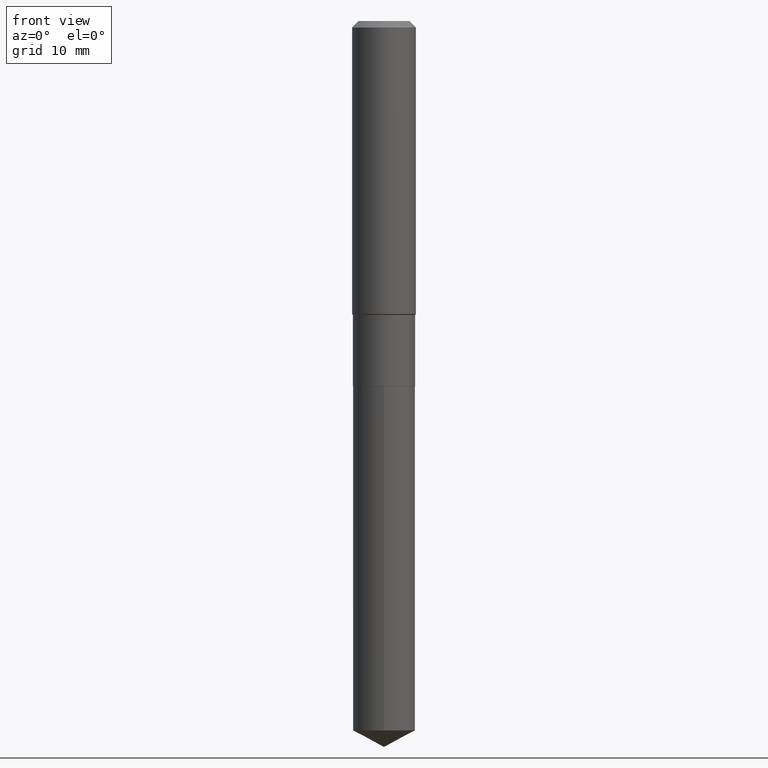
[diagram: clean part render]
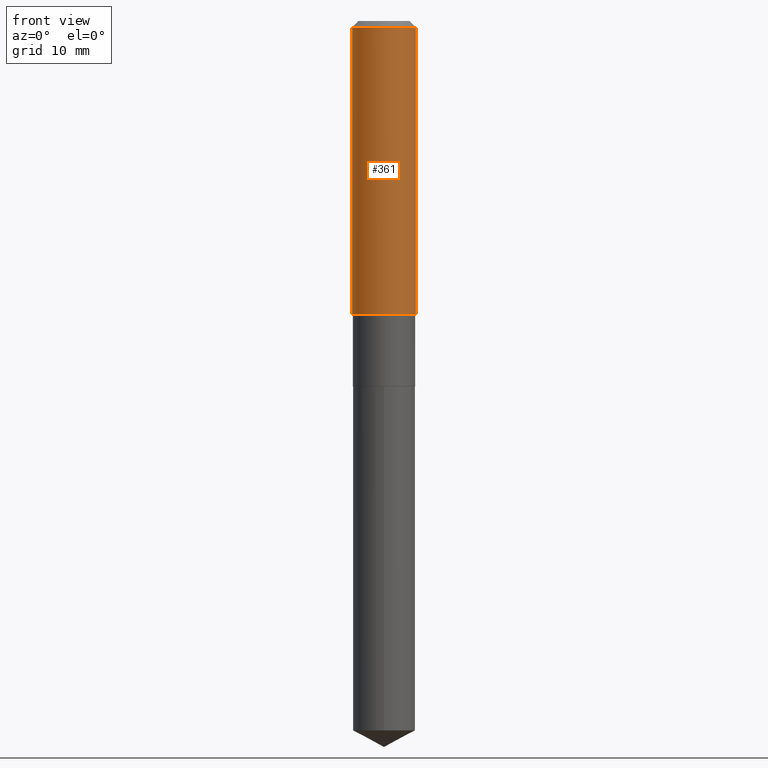
[diagram: same view with one face highlighted and labeled with its STEP entity id]
A machine part, front view. The second image highlights one B-rep face of the part: STEP entity #361.
In plain terms, the highlighted cylindrical surface (edge-blend (fillet) strip) has radius 4.0005 mm, axis along (-0, 0, 1).
Its self-contained STEP definition (entity closure, byte-faithful):
#16 = VERTEX_POINT ( 'NONE', #144 ) ;
#26 = CARTESIAN_POINT ( 'NONE',  ( -0.1575000000000000844, 1.119104808822158392E-15, -7.747322767151481189E-30 ) ) ;
#45 = EDGE_LOOP ( 'NONE', ( #453, #390, #393, #409 ) ) ;
#56 = VERTEX_POINT ( 'NONE', #291 ) ;
#58 = EDGE_CURVE ( 'NONE', #272, #56, #182, .T. ) ;
#59 = CARTESIAN_POINT ( 'NONE',  ( 0.1575000000000000844, -1.099816621735587677E-15, 7.679978421878603638E-30 ) ) ;
#63 = DIRECTION ( 'NONE',  ( -2.445468806185136877E-29, 3.491481338843145188E-15, 1.000000000000000000 ) ) ;
#71 = DIRECTION ( 'NONE',  ( -2.445468806185136597E-29, 3.491481338843145583E-15, 1.000000000000000000 ) ) ;
#76 = FACE_OUTER_BOUND ( 'NONE', #45, .T. ) ;
#101 = LINE ( 'NONE', #26, #400 ) ;
#134 = DIRECTION ( 'NONE',  ( 1.000000000000000000, -6.982962677686267499E-15, 4.876176775795936353E-29 ) ) ;
#144 = CARTESIAN_POINT ( 'NONE',  ( -0.1575000000000000011, -1.460314317281686560E-15, -0.03150000000000019451 ) ) ;
#164 = CARTESIAN_POINT ( 'NONE',  ( 0.1575000000000000011, -1.209798283909146741E-15, -0.03150000000000019451 ) ) ;
#178 = VECTOR ( 'NONE', #398, 39.37007874015748143 ) ;
#181 = CARTESIAN_POINT ( 'NONE',  ( 3.536270167184016952E-29, -5.048856590034130447E-15, -1.446050000000000058 ) ) ;
#182 = CIRCLE ( 'NONE', #252, 0.1575000000000001676 ) ;
#205 = DIRECTION ( 'NONE',  ( 1.000000000000000000, -6.982962677686265922E-15, 0.000000000000000000 ) ) ;
#207 = CARTESIAN_POINT ( 'NONE',  ( 0.000000000000000000, 0.000000000000000000, 0.000000000000000000 ) ) ;
#209 = CYLINDRICAL_SURFACE ( 'NONE', #472, 0.1575000000000000844 ) ;
#232 = EDGE_CURVE ( 'NONE', #16, #324, #357, .T. ) ;
#249 = EDGE_CURVE ( 'NONE', #56, #324, #478, .T. ) ;
#252 = AXIS2_PLACEMENT_3D ( 'NONE', #181, #71, #442 ) ;
#272 = VERTEX_POINT ( 'NONE', #427 ) ;
#291 = CARTESIAN_POINT ( 'NONE',  ( 0.1575000000000001676, -6.148673211769718717E-15, -1.446050000000000058 ) ) ;
#302 = DIRECTION ( 'NONE',  ( -2.445468806185136597E-29, 3.491481338843145583E-15, 1.000000000000000000 ) ) ;
#324 = VERTEX_POINT ( 'NONE', #164 ) ;
#340 = EDGE_CURVE ( 'NONE', #272, #16, #101, .T. ) ;
#341 = CARTESIAN_POINT ( 'NONE',  ( 7.703226739483226971E-31, -1.099816621735597538E-16, -0.03150000000000019451 ) ) ;
#357 = CIRCLE ( 'NONE', #371, 0.1575000000000000011 ) ;
#361 = ADVANCED_FACE ( 'NONE', ( #76 ), #209, .T. ) ;
#371 = AXIS2_PLACEMENT_3D ( 'NONE', #341, #389, #205 ) ;
#389 = DIRECTION ( 'NONE',  ( -2.445468806185136597E-29, 3.491481338843145583E-15, 1.000000000000000000 ) ) ;
#390 = ORIENTED_EDGE ( 'NONE', *, *, #58, .T. ) ;
#393 = ORIENTED_EDGE ( 'NONE', *, *, #249, .T. ) ;
#398 = DIRECTION ( 'NONE',  ( -2.445468806185136877E-29, 3.491481338843145188E-15, 1.000000000000000000 ) ) ;
#400 = VECTOR ( 'NONE', #63, 39.37007874015748143 ) ;
#409 = ORIENTED_EDGE ( 'NONE', *, *, #232, .F. ) ;
#427 = CARTESIAN_POINT ( 'NONE',  ( -0.1575000000000001676, -3.929751781211971266E-15, -1.446050000000000058 ) ) ;
#442 = DIRECTION ( 'NONE',  ( 1.000000000000000000, -6.982962677686267499E-15, 0.000000000000000000 ) ) ;
#453 = ORIENTED_EDGE ( 'NONE', *, *, #340, .F. ) ;
#472 = AXIS2_PLACEMENT_3D ( 'NONE', #207, #302, #134 ) ;
#478 = LINE ( 'NONE', #59, #178 ) ;